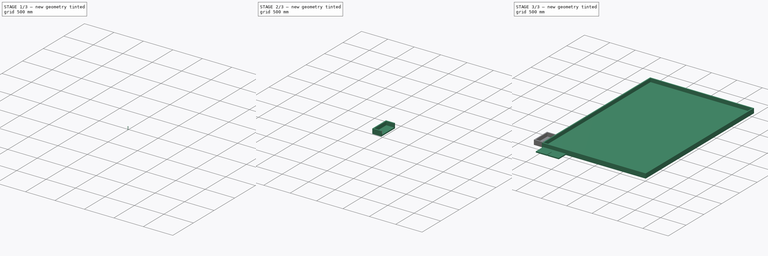
[diagram: build sequence overview — one tinted view per stage of 3, left to right]
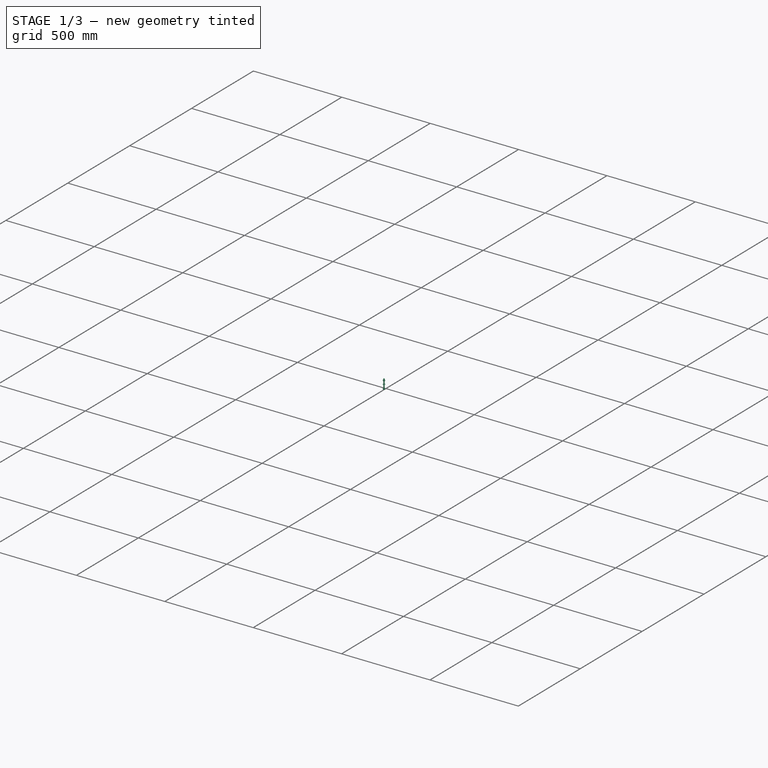
[diagram: stage 1 of 3 — iso view after this stage's code; geometry added in this stage tinted green]
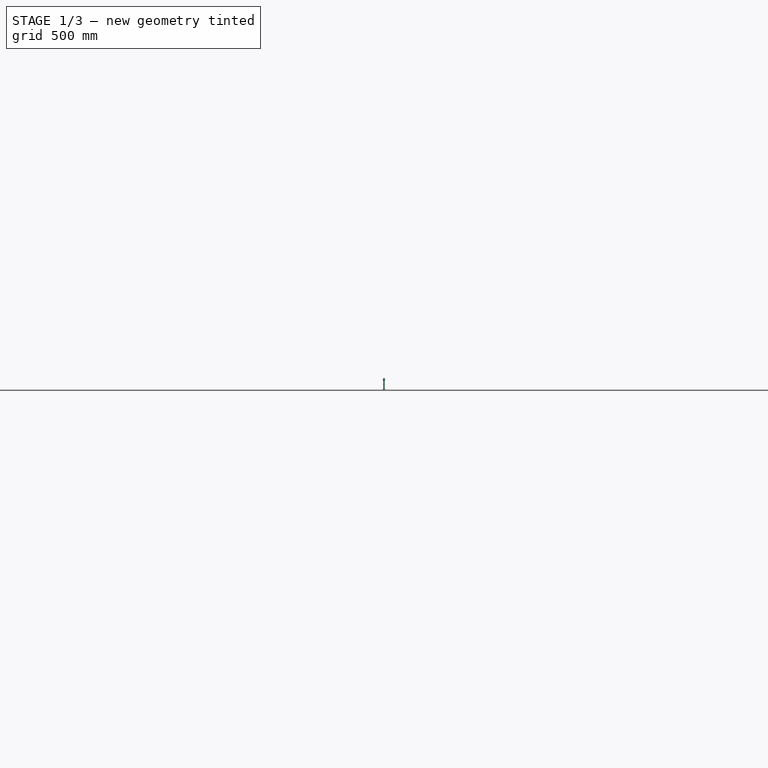
[diagram: stage 1 of 3 — front view after this stage's code; geometry added in this stage tinted green]
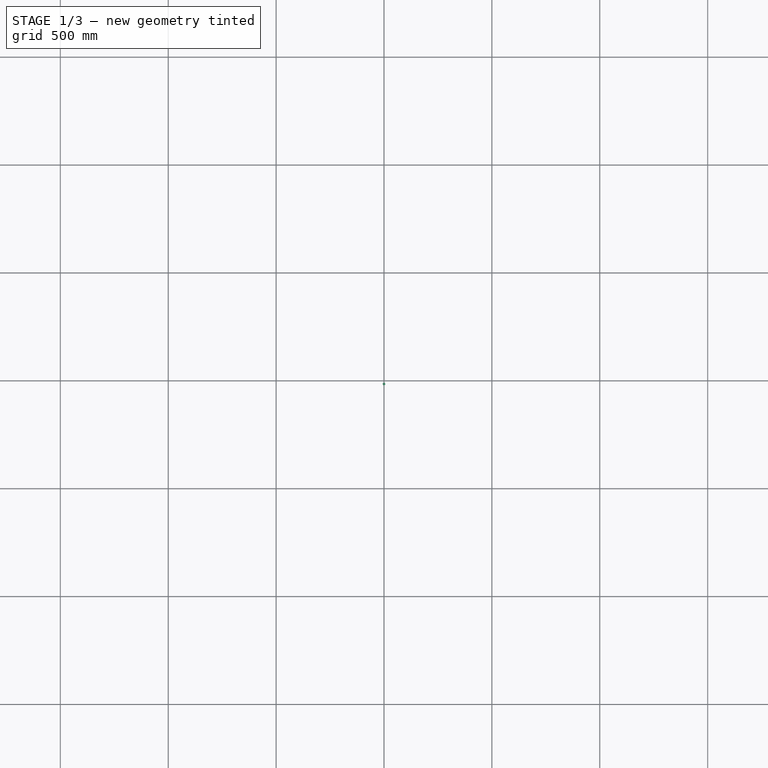
[diagram: stage 1 of 3 — top view after this stage's code; geometry added in this stage tinted green]
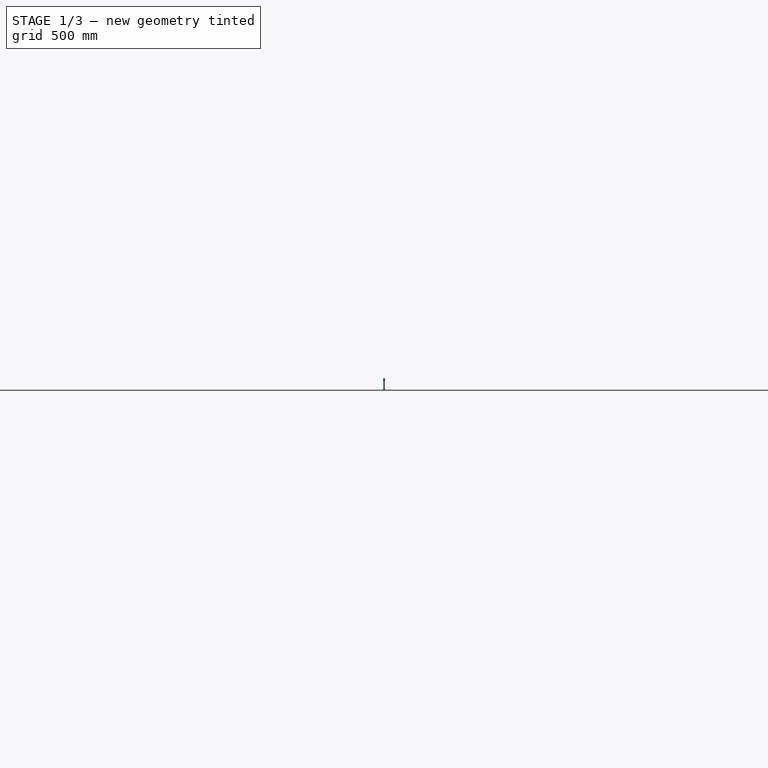
[diagram: stage 1 of 3 — right view after this stage's code; geometry added in this stage tinted green]
FCSTD DOCUMENT  (FreeCAD 2024.113R14555 (Git shallow))
Label: table_2024
License: Creative Commons Attribution-NoDerivatives
LicenseURL: http://creativecommons.org/licenses/by-nd/4.0/
objects: App::Link×27, App::Part×6, Sketcher::SketchObject×5, PartDesign::Pad×4, PartDesign::Body×3, Part::Feature×3, Part::FeaturePython×3, Image::ImagePlane×2, App::DocumentObjectGroup×2, App::SavedView×2, PartDesign::Pocket×1
note: 34 computed .brp shape members not serialized (recipe doc carries the construction recipe); baked Part::Feature solids carry a one-line shape summary decoded from their .brp
EXTERNAL_REF file=robots_2024.FCStd obj=Part

FEATURE [PartDesign::Body] Body011  label="Jardiniere"
  AutoGroupSolids = false
  ClaimAllChildren = false
  ExportMode = 0
  FixShape = 1
  Group = -> [Sketch003,Pad003,Sketch004,Pocket]
  InvalidShape = false
  Origin = -> Origin016
  Placement = pos=(0,578,0) rot=(0,0,1;0rad)
  SingleSolid = true
  Tip = -> Pocket
  TreeRank = 131
  ValidateShape = false
  _ExportChildren = -> [Pad003,Pocket]
  _GroupVersion = 1
FEATURE [App::Link] Link002  label="Link002(Jardiniere)"
  AutoLinkLabel = true
  AutoPlacement = true
  LinkPlacement = pos=(0,2050,0) rot=(0,0,1;0rad)
  LinkedObject = -> Body011
  Placement = pos=(0,2050,0) rot=(0,0,1;0rad)
  SyncGroupVisibility = false
  TreeRank = 136
  _LinkVersion = 1
FEATURE [App::Link] Link003  label="Link003(Jardiniere)"
  AutoLinkLabel = true
  AutoPlacement = true
  LinkPlacement = pos=(797,3.67761e-05,0) rot=(0,0,1;1.5708rad)
  LinkedObject = -> Body011
  Placement = pos=(797,3.67761e-05,0) rot=(0,0,1;1.5708rad)
  SyncGroupVisibility = false
  TreeRank = 137
  _LinkVersion = 1
FEATURE [App::Link] Link004  label="Link004(*Jardiniere)"
  AutoLinkLabel = true
  AutoPlacement = true
  LinkPlacement = pos=(1572,0.000129163,0) rot=(0,0,1;1.5708rad)
  LinkedObject = -> Link003
  Placement = pos=(1572,0.000129163,0) rot=(0,0,1;1.5708rad)
  SyncGroupVisibility = false
  TreeRank = 138
  _LinkVersion = 1
FEATURE [App::Link] Link005  label="Link005(*Jardiniere)"
  AutoLinkLabel = true
  AutoPlacement = true
  LinkPlacement = pos=(428,3000,0) rot=(0,0,-1;1.5708rad)
  LinkedObject = -> Link003
  Placement = pos=(428,3000,0) rot=(0,0,-1;1.5708rad)
  SyncGroupVisibility = false
  TreeRank = 139
  _LinkVersion = 1
FEATURE [App::Link] Link006  label="Link006(*Jardiniere)"
  AutoLinkLabel = true
  AutoPlacement = true
  LinkPlacement = pos=(1203,3000,0) rot=(0,0,-1;1.5708rad)
  LinkedObject = -> Link004
  Placement = pos=(1203,3000,0) rot=(0,0,-1;1.5708rad)
  SyncGroupVisibility = false
  TreeRank = 140
  _LinkVersion = 1
FEATURE [App::Part] Part  label="Jardinieres"
  ClaimAllChildren = false
  ExportMode = 1
  Group = -> [Body011,Link002,Link003,Link004,Link005,Link006]
  Origin = -> Origin017
  TreeRank = 143
  _ExportChildren = -> [Body011,Link002,Link003,Link004,Link005,Link006]
  _GroupVersion = 1
FEATURE [Part::Feature] Solid  label="Panneau"
  FixShape = 1
  InvalidShape = false
  Placement = pos=(0,-15,100.6) rot=(0,0,1;2.26893rad)
  TreeRank = 144
  ValidateShape = false
  shape: bbox 140.9 x 140.9 x 34 mm, 21 faces (baked)
FEATURE [Part::Feature] Solid001  label="Support Panneau"
  FixShape = 1
  InvalidShape = false
  Placement = pos=(0,-15,45) rot=(0,0,1;0rad)
  TreeRank = 145
  ValidateShape = false
  shape: bbox 60 x 22.5 x 50 mm, 29 faces (baked)
FEATURE [Part::FeaturePython] Washer  label="M6-Rondelle"  # Fasteners workbench fastener (typed FeaturePython)
  FixShape = 1
  InvalidShape = false
  Placement = pos=(0,-15,70) rot=(0,0,1;0rad)
  TreeRank = 161
  ValidateShape = false
  baseObject = -> Solid001 [Edge23]
  diameter = 7
  invert = false
  matchOuter = false
  offset = 0
  type = 5
FEATURE [Part::FeaturePython] Nut  label="M6-Écrou"  # Fasteners workbench fastener (typed FeaturePython)
  FixShape = 1
  InvalidShape = false
  Placement = pos=(0,-15,88.1) rot=(0,0,1;0rad)
  TreeRank = 163
  ValidateShape = false
  baseObject = -> Solid [Edge33]
  diameter = 4
  invert = true
  leftHanded = false
  matchOuter = false
  offset = 0
  thread = false
  type = 21
FEATURE [Part::FeaturePython] Screw  label="M6x50-Vis"  # Fasteners workbench fastener (typed FeaturePython)
  FixShape = 1
  InvalidShape = false
  Placement = pos=(0,-15,50) rot=(-1,0,0;3.14159rad)
  TreeRank = 164
  ValidateShape = false
  baseObject = -> Solid001 [Edge63]
  diameter = 7
  invert = true
  leftHanded = false
  length = 11
  lengthCustom = 50
  matchOuter = false
  offset = 0
  thread = false
  type = 48
FEATURE [App::Part] Part004  label="Panneau Solaire"
  ClaimAllChildren = false
  ExportMode = 1
  Group = -> [Solid,Solid001,Washer,Nut,Screw]
  Origin = -> Origin018
  Placement = pos=(2022,275,0) rot=(0,0,1;1.5708rad)
  TreeRank = 148
  _ExportChildren = -> [Solid,Solid001,Washer,Nut,Screw]
  _GroupVersion = 1
FEATURE [App::Link] Link007  label="Link007(Panneau Solaire)"
  AutoLinkLabel = true
  AutoPlacement = true
  LinkPlacement = pos=(2022,500,0) rot=(0,0,1;1.5708rad)
  LinkedObject = -> Part004
  Placement = pos=(2022,500,0) rot=(0,0,1;1.5708rad)
  SyncGroupVisibility = false
  TreeRank = 165
  _LinkVersion = 1
FEATURE [App::Link] Link008  label="Link008(*Panneau Solaire)"
  AutoLinkLabel = true
  AutoPlacement = true
  LinkPlacement = pos=(2022,725,0) rot=(0,0,1;1.5708rad)
  LinkedObject = -> Link007
  Placement = pos=(2022,725,0) rot=(0,0,1;1.5708rad)
  SyncGroupVisibility = false
  TreeRank = 166
  _LinkVersion = 1
FEATURE [App::Link] Link009  label="Link009(*Panneau Solaire)"
  AutoLinkLabel = true
  AutoPlacement = true
  LinkPlacement = pos=(2022,1275,0) rot=(0,0,1;1.5708rad)
  LinkedObject = -> Link008
  Placement = pos=(2022,1275,0) rot=(0,0,1;1.5708rad)
  SyncGroupVisibility = false
  TreeRank = 167
  _LinkVersion = 1
FEATURE [App::Link] Link010  label="Link010(*Panneau Solaire)"
  AutoLinkLabel = true
  AutoPlacement = true
  LinkPlacement = pos=(2022,1500,0) rot=(0,0,1;1.5708rad)
  LinkedObject = -> Link009
  Placement = pos=(2022,1500,0) rot=(0,0,1;1.5708rad)
  SyncGroupVisibility = false
  TreeRank = 168
  _LinkVersion = 1
FEATURE [App::Link] Link011  label="Link011(*Panneau Solaire)"
  AutoLinkLabel = true
  AutoPlacement = true
  LinkPlacement = pos=(2022,1725,0) rot=(0,0,1;1.5708rad)
  LinkedObject = -> Link010
  Placement = pos=(2022,1725,0) rot=(0,0,1;1.5708rad)
  SyncGroupVisibility = false
  TreeRank = 169
  _LinkVersion = 1
FEATURE [App::Link] Link012  label="Link012(*Panneau Solaire)"
  AutoLinkLabel = true
  AutoPlacement = true
  LinkPlacement = pos=(2022,2275,0) rot=(0,0,1;1.5708rad)
  LinkedObject = -> Link011
  Placement = pos=(2022,2275,0) rot=(0,0,1;1.5708rad)
  SyncGroupVisibility = false
  TreeRank = 170
  _LinkVersion = 1
FEATURE [App::Link] Link013  label="Link013(*Panneau Solaire)"
  AutoLinkLabel = true
  AutoPlacement = true
  LinkPlacement = pos=(2022,2500,0) rot=(0,0,1;1.5708rad)
  LinkedObject = -> Link012
  Placement = pos=(2022,2500,0) rot=(0,0,1;1.5708rad)
  SyncGroupVisibility = false
  TreeRank = 171
  _LinkVersion = 1
FEATURE [App::Link] Link014  label="Link014(*Panneau Solaire)"
  AutoLinkLabel = true
  AutoPlacement = true
  LinkPlacement = pos=(2022,2725,0) rot=(0,0,1;1.5708rad)
  LinkedObject = -> Link013
  Placement = pos=(2022,2725,0) rot=(0,0,1;1.5708rad)
  SyncGroupVisibility = false
  TreeRank = 172
  _LinkVersion = 1
FEATURE [App::Part] Part005  label="Panneaux Solaire"
  ClaimAllChildren = false
  ExportMode = 1
  Group = -> [Part004,Link007,Link008,Link009,Link010,Link011,Link012,Link013,Link014]
  Origin = -> Origin019
  TreeRank = 175
  _ExportChildren = -> [Part004,Link007,Link008,Link009,Link010,Link011,Link012,Link013,Link014]
  _GroupVersion = 1
FEATURE [Part::Feature] Solid002  label="plante"
  FixShape = 1
  InvalidShape = false
  Placement = pos=(700,920,0) rot=(0,0,1;0rad)
  TreeRank = 176
  ValidateShape = false
  shape: bbox 76.08 x 76.08 x 105.5 mm, 363 faces (baked)
FEATURE [App::Link] Link015  label="Link015(plante)"
  AutoLinkLabel = true
  AutoPlacement = true
  LinkPlacement = pos=(630,945,0) rot=(0,0,-1;0.349066rad)
  LinkedObject = -> Solid002
  Placement = pos=(630,945,0) rot=(0,0,-1;0.349066rad)
  SyncGroupVisibility = false
  TreeRank = 177
  _LinkVersion = 1
FEATURE [App::Link] Link016  label="Link016(plante)"
  AutoLinkLabel = true
  AutoPlacement = true
  LinkPlacement = pos=(775,950,0) rot=(0,0,1;0.174533rad)
  LinkedObject = -> Solid002
  Placement = pos=(775,950,0) rot=(0,0,1;0.174533rad)
  SyncGroupVisibility = false
  TreeRank = 178
  _LinkVersion = 1
FEATURE [App::Link] Link017  label="Link017(plante)"
  AutoLinkLabel = true
  AutoPlacement = true
  LinkPlacement = pos=(700,1070,0) rot=(0,0,-1;0.174533rad)
  LinkedObject = -> Solid002
  Placement = pos=(700,1070,0) rot=(0,0,-1;0.174533rad)
  SyncGroupVisibility = false
  TreeRank = 179
  _LinkVersion = 1
FEATURE [App::Link] Link018  label="Link018(*plante)"
  AutoLinkLabel = true
  AutoPlacement = true
  LinkPlacement = pos=(773.86,1056.98,0) rot=(0,0,-1;0.523599rad)
  LinkedObject = -> Link017
  Placement = pos=(773.86,1056.98,0) rot=(0,0,-1;0.523599rad)
  SyncGroupVisibility = false
  TreeRank = 180
  _LinkVersion = 1
FEATURE [App::Link] Link019  label="Link019(*plante)"
  AutoLinkLabel = true
  AutoPlacement = true
  LinkPlacement = pos=(640,1055,0) rot=(0,0,1;0.174533rad)
  LinkedObject = -> Link017
  Placement = pos=(640,1055,0) rot=(0,0,1;0.174533rad)
  SyncGroupVisibility = false
  TreeRank = 181
  _LinkVersion = 1
FEATURE [App::Part] Part006  label="Ensemble Plantes"
  ClaimAllChildren = false
  ExportMode = 1
  Group = -> [Solid002,Link015,Link016,Link017,Link018,Link019]
  Origin = -> Origin020
  TreeRank = 184
  _ExportChildren = -> [Solid002,Link015,Link016,Link017,Link018,Link019]
  _GroupVersion = 1
FEATURE [App::Link] Link020  label="Link020(Ensemble Plantes)"
  AutoLinkLabel = true
  AutoPlacement = true
  LinkPlacement = pos=(600,-7.15256e-05,0) rot=(0,0,1;0rad)
  LinkedObject = -> Part006
  Placement = pos=(600,-7.15256e-05,0) rot=(0,0,1;0rad)
  SyncGroupVisibility = false
  TreeRank = 185
  _LinkVersion = 1
FEATURE [App::Link] Link021  label="Link021(Ensemble Plantes)"
  AutoLinkLabel = true
  AutoPlacement = true
  LinkPlacement = pos=(-3.8147e-06,1005,0) rot=(0,0,1;0rad)
  LinkedObject = -> Part006
  Placement = pos=(-3.8147e-06,1005,0) rot=(0,0,1;0rad)
  SyncGroupVisibility = false
  TreeRank = 186
  _LinkVersion = 1
FEATURE [App::Link] Link022  label="Link022(Ensemble Plantes)"
  AutoLinkLabel = true
  AutoPlacement = true
  LinkPlacement = pos=(600,1000,0) rot=(0,0,1;0rad)
  LinkedObject = -> Part006
  Placement = pos=(600,1000,0) rot=(0,0,1;0rad)
  SyncGroupVisibility = false
  TreeRank = 187
  _LinkVersion = 1
FEATURE [App::Link] Link023  label="Link023(Ensemble Plantes)"
  AutoLinkLabel = true
  AutoPlacement = true
  LinkPlacement = pos=(-364.032,639.662,2.645e-12) rot=(0,0,-1;0.174533rad)
  LinkedObject = -> Part006
  Placement = pos=(-364.032,639.662,2.645e-12) rot=(0,0,-1;0.174533rad)
  SyncGroupVisibility = false
  TreeRank = 188
  _LinkVersion = 1
FEATURE [App::Link] Link024  label="Link024(*Ensemble Plantes)"
  AutoLinkLabel = true
  AutoPlacement = true
  LinkPlacement = pos=(800,500,0) rot=(0,0,1;0rad)
  LinkedObject = -> Link022
  Placement = pos=(800,500,0) rot=(0,0,1;0rad)
  SyncGroupVisibility = false
  TreeRank = 189
  _LinkVersion = 1
FEATURE [App::DocumentObjectGroup] Group001  label="Plantes"
  ClaimAllChildren = true
  ExportMode = 1
  Group = -> [Part006,Link020,Link021,Link022,Link023,Link024]
  TreeRank = 190
  _GroupVersion = 1
FEATURE [App::Part] Part001  label="Table 2024"
  ClaimAllChildren = false
  ExportMode = 1
  Group = -> [ImagePlane,ImagePlane001,Part,Part005,Group001,Part006,Link020,Link024,Link022,Link023,Link021]
  Origin = -> Origin003
  TreeRank = 0
  _ExportChildren = -> [ImagePlane,ImagePlane001,Part,Part005,Group001]
  _GroupVersion = 1
FEATURE [App::Link] Link025  label="Link025(plante)"
  AutoLinkLabel = true
  AutoPlacement = true
  LinkPlacement = pos=(1406,392,0) rot=(0,0,1;0rad)
  LinkedObject = -> Solid002
  Placement = pos=(1406,392,0) rot=(0,0,1;0rad)
  SyncGroupVisibility = false
  TreeRank = 191
  _LinkVersion = 1
FEATURE [App::Link] Link026  label="Link026(*plante)"
  AutoLinkLabel = true
  AutoPlacement = true
  LinkPlacement = pos=(1474,395,0) rot=(0,0,1;0rad)
  LinkedObject = -> Link025
  Placement = pos=(1474,395,0) rot=(0,0,1;0rad)
  SyncGroupVisibility = false
  TreeRank = 192
  _LinkVersion = 1
FEATURE [App::SavedView] SavedView
  BackLight = true
  BackLightIntensity = 1
  ClipConcave = false
  ClipEnable = false
  ClipEnableX = false
  ClipEnableY = true
  ClipEnableZ = false
  ClipFill = true
  ClipGroup = false
  ClipHatch = true
  ClipHatchScale = 0.5
  ClipHatchTexture = :icons/section-hatch.png
  ClipPlaneSize = 40
  ClipPosition = (0,0,0)
  ClipPositionX = (0,0,0)
  ClipPositionY = (0,-50,-1.14441e-05)
  ClipPositionZ = (0,0,0)
  ClipShowPlane = false
  SaveCamera = true
  SaveClippings = true
  SaveDrawStyleSettings = true
  SaveShowOnTop = true
  SaveVisibilities = true
  TreeRank = 193
FEATURE [App::SavedView] SavedView001
  BackLight = true
  BackLightIntensity = 1
  ClipConcave = false
  ClipEnable = false
  ClipEnableX = false
  ClipEnableY = true
  ClipEnableZ = false
  ClipFill = true
  ClipGroup = false
  ClipHatch = true
  ClipHatchScale = 0.5
  ClipHatchTexture = :icons/section-hatch.png
  ClipPlaneSize = 40
  ClipPosition = (0,0,0)
  ClipPositionX = (0,0,0)
  ClipPositionY = (0,-80,-3.05176e-05)
  ClipPositionZ = (0,0,0)
  ClipShowPlane = false
  SaveCamera = true
  SaveClippings = true
  SaveDrawStyleSettings = true
  SaveShowOnTop = true
  SaveVisibilities = true
  TreeRank = 194
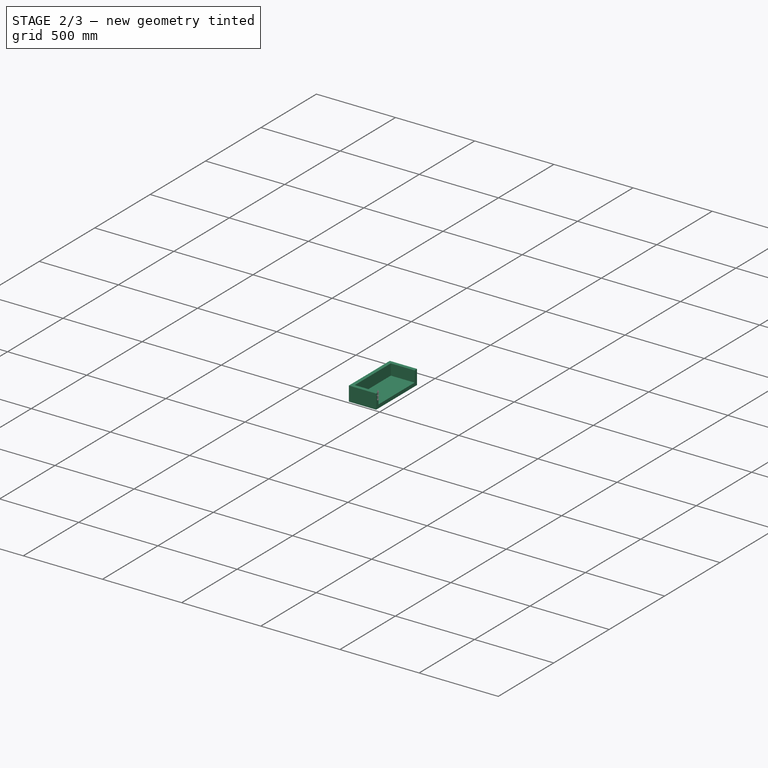
[diagram: stage 2 of 3 — iso view after this stage's code; geometry added in this stage tinted green]
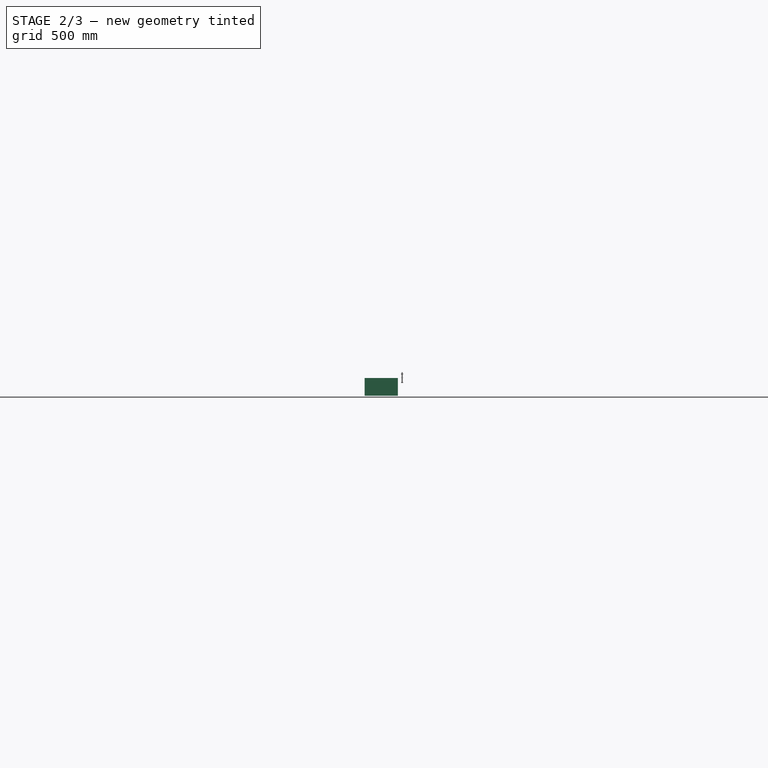
[diagram: stage 2 of 3 — front view after this stage's code; geometry added in this stage tinted green]
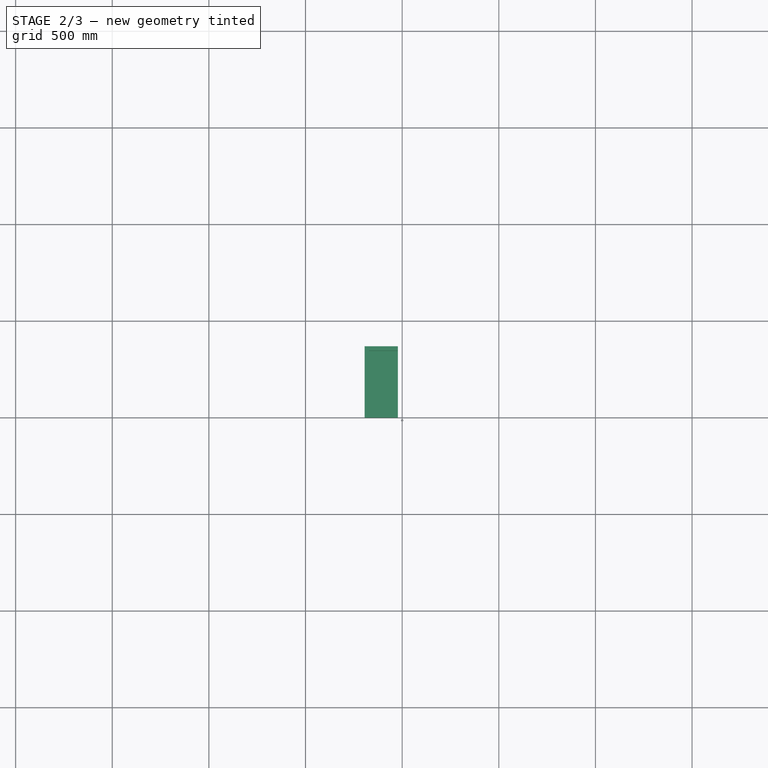
[diagram: stage 2 of 3 — top view after this stage's code; geometry added in this stage tinted green]
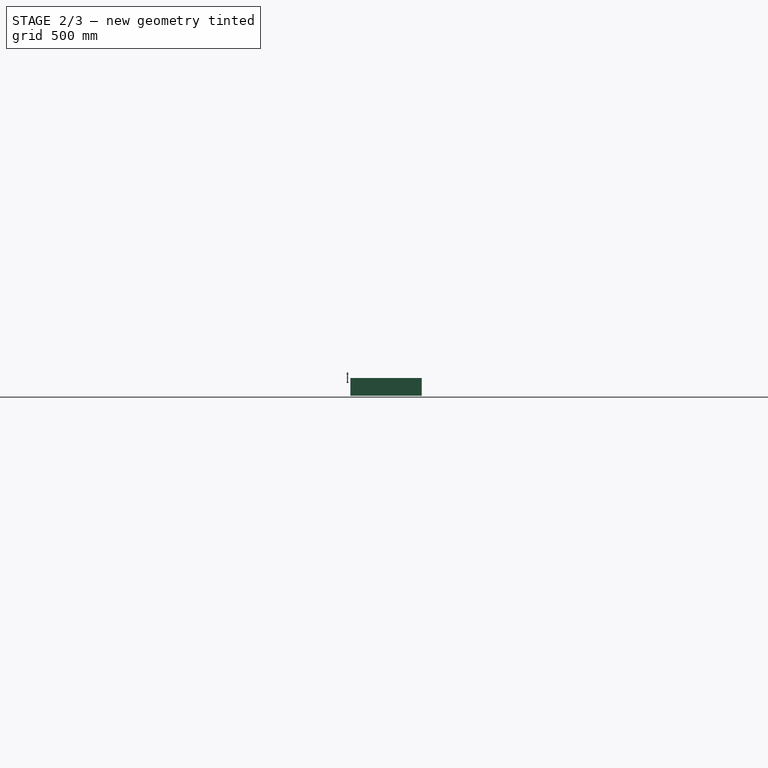
[diagram: stage 2 of 3 — right view after this stage's code; geometry added in this stage tinted green]
FEATURE [PartDesign::Body] Body010  label="ZoneCalculBleu"
  AutoGroupSolids = false
  ClaimAllChildren = false
  ExportMode = 0
  Group = -> [Sketch002,Pad002]
  InvalidShape = false
  Origin = -> Origin015
  Placement = pos=(3.331e-13,1500,70) rot=(0,0,-1;1.5708rad)
  SingleSolid = true
  Tip = -> Pad002
  TreeRank = 115
  ValidateShape = true
  _ExportChildren = -> [Pad002]
  _GroupVersion = 1
FEATURE [App::Link] Link  label="Mary"
  AutoLinkLabel = true
  AutoPlacement = true
  LinkPlacement = pos=(1842,151,14) rot=(0,0,-1;1.5708rad)
  LinkedObject = -> <external robots_2024.FCStd>#Part
  Placement = pos=(1842,151,14) rot=(0,0,-1;1.5708rad)
  SyncGroupVisibility = false
  TreeRank = 119
  _LinkVersion = 1
FEATURE [App::DocumentObjectGroup] Group  label="Robots"
  ClaimAllChildren = true
  ExportMode = 1
  Group = -> [Link]
  TreeRank = 0
  _GroupVersion = 1
FEATURE [Image::ImagePlane] ImagePlane001  label="Quadrillage"
  Placement = pos=(1000,1500,0.2) rot=(0,0,1;1.5708rad)
  TreeRank = 120
  XSize = 3000
  YSize = 2000
FEATURE [App::Link] Link001  label="ZoneCalculJaune"
  AutoLinkLabel = true
  AutoPlacement = true
  LinkPlacement = pos=(0.000107288,1950,70) rot=(0,0,-1;1.5708rad)
  LinkedObject = -> Body010
  Placement = pos=(0.000107288,1950,70) rot=(0,0,-1;1.5708rad)
  SyncGroupVisibility = false
  TreeRank = 121
  _LinkVersion = 1
FEATURE [App::Part] Part003  label="Table"
  ClaimAllChildren = false
  ExportMode = 1
  Group = -> [Body,Body010,Link001]
  Origin = -> Origin014
  TreeRank = 40
  _ExportChildren = -> [Body,Body010,Link001]
  _GroupVersion = 1
FEATURE [Sketcher::SketchObject] Sketch003
  ArcFitTolerance = 1e-06
  AttachmentSupport = -> [XZ_Plane012]
  ExternalBSplineMaxDegree = 5
  ExternalBSplineTolerance = 0.0001
  FixShape = 1
  FullyConstrained = true
  InternalTolerance = 1e-06
  InvalidShape = false
  MakeInternals = false
  MapMode = 5
  Placement = pos=(0,0,0) rot=(1,0,0;1.5708rad)
  Support = -> [XZ_Plane012]
  TreeRank = 132
  ValidateShape = false
  sketch-geometry (4):
    g0: LineSegment StartX=-194 StartY=70 StartZ=0 EndX=-22 EndY=70 EndZ=0
    g1: LineSegment StartX=-22 StartY=70 StartZ=0 EndX=-22 EndY=-22 EndZ=0
    g2: LineSegment StartX=-22 StartY=-22 StartZ=0 EndX=-194 EndY=-22 EndZ=0
    g3: LineSegment StartX=-194 StartY=-22 StartZ=0 EndX=-194 EndY=70 EndZ=0
  constraints (12):
    c: Coincident(g0,g1)
    c: Coincident(g1,g2)
    c: Coincident(g2,g3)
    c: Coincident(g3,g0)
    c: Horizontal(g0)
    c: Horizontal(g2)
    c: Vertical(g1)
    c: Vertical(g3)
    c: DistanceY(g1,g-1) = 22
    c: DistanceX(g1,g-1) = 22
    c: DistanceY(g0) = 70
    c: DistanceX(g0,g0) = 172
FEATURE [PartDesign::Pad] Pad003
  AddSubType = 0
  AlongSketchNormal = false
  AutoTaperInnerAngle = true
  CheckUpToFaceLimits = true
  ClaimChildren = false
  Direction = (0,-1,2e-16)
  Fit = 0
  FitJoin = 0
  FixShape = 1
  InnerFit = 0
  InnerFitJoin = 0
  InvalidShape = false
  Length = 369
  Length2 = 10
  Linearize = true
  NewSolid = false
  Profile = -> Sketch003
  ReferenceAxis = -> Sketch003 [N_Axis]
  Refine = true
  Reversed = true
  Suppress = false
  TaperInnerAngle = 0
  TaperInnerAngleRev = 0
  TreeRank = 133
  Type = 0
  ValidateShape = false
  _ProfileBasedVersion = 1
FEATURE [Sketcher::SketchObject] Sketch004
  ArcFitTolerance = 1e-06
  AttachmentSupport = -> [XY_Plane012]
  ExternalBSplineMaxDegree = 5
  ExternalBSplineTolerance = 0.0001
  ExternalGeometry = -> [Pad003]
  FixShape = 1
  FullyConstrained = true
  InternalTolerance = 1e-06
  InvalidShape = false
  MakeInternals = false
  MapMode = 5
  Support = -> [XY_Plane012]
  TreeRank = 134
  ValidateShape = false
  sketch-geometry (4):
    g0: LineSegment StartX=-22 StartY=347 StartZ=0 EndX=-172 EndY=347 EndZ=0
    g1: LineSegment StartX=-172 StartY=347 StartZ=0 EndX=-172 EndY=22 EndZ=0
    g2: LineSegment StartX=-172 StartY=22 StartZ=0 EndX=-22 EndY=22 EndZ=0
    g3: LineSegment StartX=-22 StartY=22 StartZ=0 EndX=-22 EndY=347 EndZ=0
  constraints (12):
    c: Coincident(g0,g1)
    c: Coincident(g1,g2)
    c: Coincident(g2,g3)
    c: Coincident(g3,g0)
    c: Horizontal(g0)
    c: Horizontal(g2)
    c: Vertical(g1)
    c: Vertical(g3)
    c: PointOnObject(g0,g-3)
    c: DistanceY(g0,g-3) = 22
    c: DistanceY(g-3,g2) = 22
    c: DistanceX(g-4,g1) = 22
FEATURE [PartDesign::Pocket] Pocket
  AddSubType = 1
  AlongSketchNormal = false
  AutoTaperInnerAngle = true
  BaseFeature = -> Pad003
  CheckUpToFaceLimits = true
  ClaimChildren = false
  Direction = (0,0,-1)
  Fit = 0
  FitJoin = 0
  FixShape = 1
  InnerFit = 0
  InnerFitJoin = 0
  InvalidShape = false
  Length = 5
  Length2 = 10
  Linearize = true
  NewSolid = false
  Profile = -> Sketch004
  ReferenceAxis = -> Sketch004 [N_Axis]
  Refine = true
  Reversed = true
  Suppress = false
  TaperInnerAngle = 0
  TaperInnerAngleRev = 0
  TreeRank = 135
  Type = 1
  ValidateShape = false
  _ProfileBasedVersion = 1
  _Version = 1
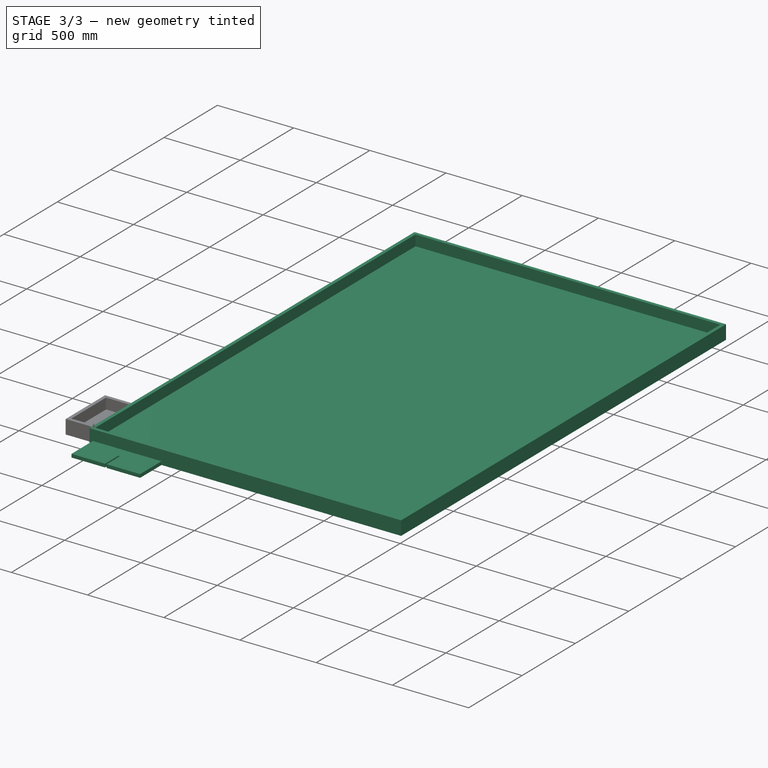
[diagram: stage 3 of 3 — iso view after this stage's code; geometry added in this stage tinted green]
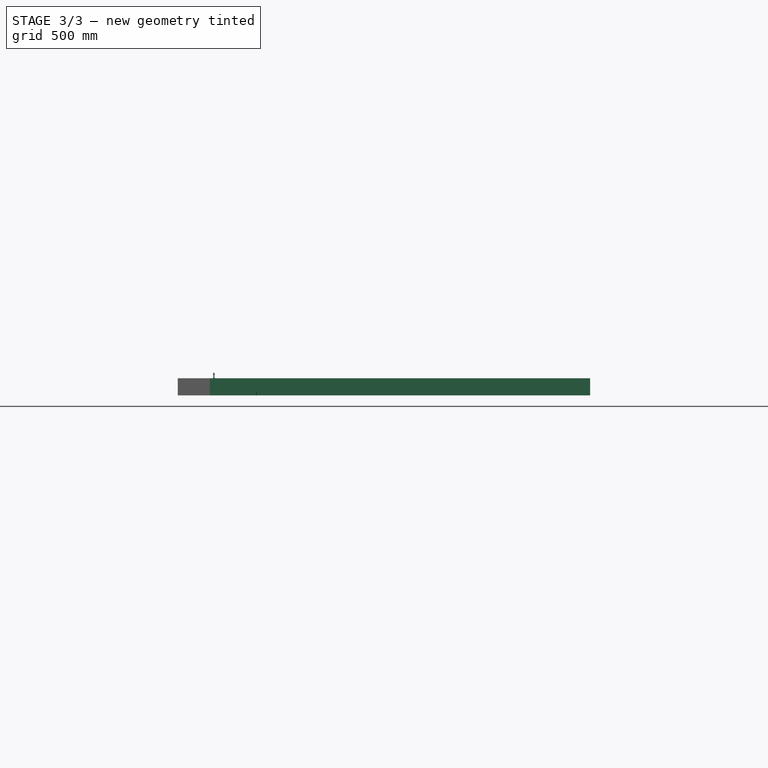
[diagram: stage 3 of 3 — front view after this stage's code; geometry added in this stage tinted green]
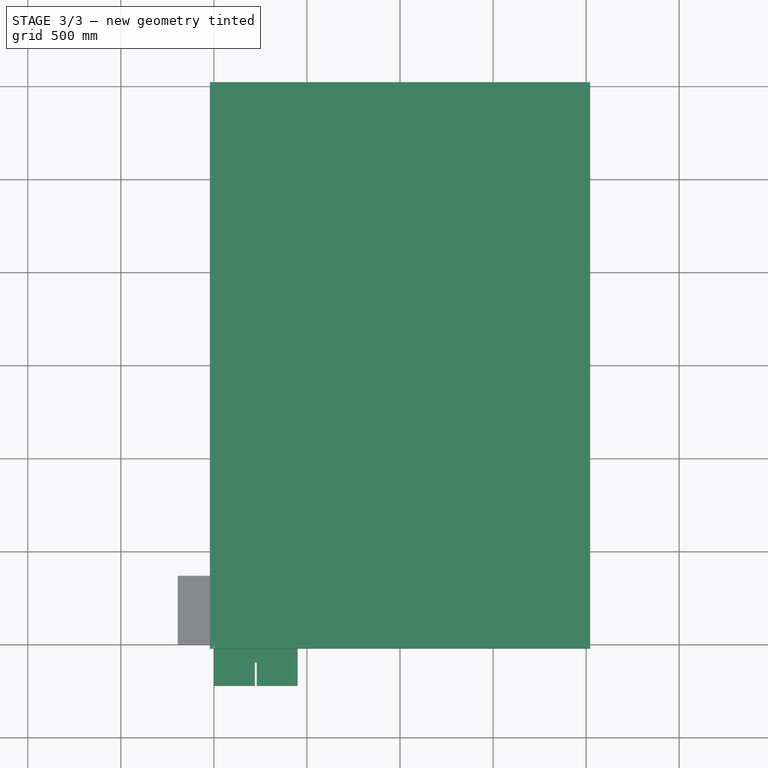
[diagram: stage 3 of 3 — top view after this stage's code; geometry added in this stage tinted green]
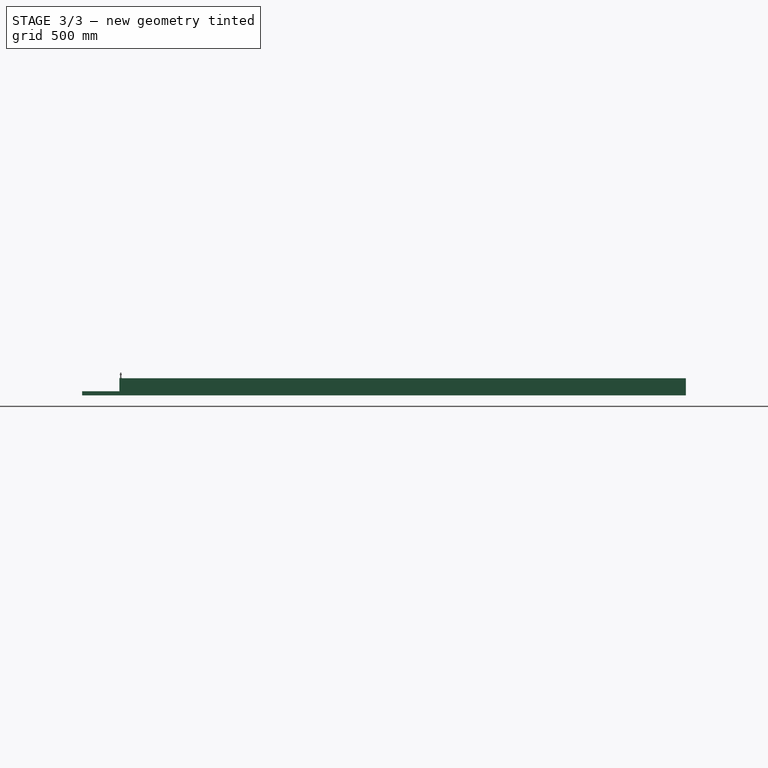
[diagram: stage 3 of 3 — right view after this stage's code; geometry added in this stage tinted green]
FEATURE [Image::ImagePlane] ImagePlane  label="Terrain"
  Placement = pos=(1000,1500,0) rot=(0,0,1;1.5708rad)
  TreeRank = 0
  XSize = 3000.34
  YSize = 2000.17
FEATURE [Sketcher::SketchObject] Sketch
  ArcFitTolerance = 1e-06
  AttachmentSupport = -> [XY_Plane]
  ExternalBSplineMaxDegree = 5
  ExternalBSplineTolerance = 0.0001
  FullyConstrained = true
  InternalTolerance = 1e-06
  InvalidShape = false
  MakeInternals = true
  MapMode = 5
  Support = -> [XY_Plane]
  TreeRank = 102
  ValidateShape = true
  sketch-geometry (4):
    g0: LineSegment StartX=-6.17e-14 StartY=9.4e-15 StartZ=0 EndX=2000 EndY=9.4e-15 EndZ=0
    g1: LineSegment StartX=2000 StartY=9.4e-15 StartZ=0 EndX=2000 EndY=3000 EndZ=0
    g2: LineSegment StartX=2000 StartY=3000 StartZ=0 EndX=0 EndY=3000 EndZ=0
    g3: LineSegment StartX=-6.17e-14 StartY=3000 StartZ=0 EndX=-6.17e-14 EndY=0 EndZ=0
  constraints (11):
    c: Coincident(g0,g1)
    c: Coincident(g1,g2)
    c: Coincident(g2,g3)
    c: Coincident(g3,g0)
    c: Horizontal(g0)
    c: Horizontal(g2)
    c: Vertical(g1)
    c: Vertical(g3)
    c: Coincident(g0,g-1)
    c: DistanceX(g2,g2) = 2000
    c: DistanceY(g1,g1) = 3000
FEATURE [PartDesign::Pad] Pad
  AddSubType = 0
  AlongSketchNormal = false
  AutoTaperInnerAngle = true
  CheckUpToFaceLimits = true
  ClaimChildren = false
  Direction = (0,0,1)
  Fit = 0
  FitJoin = 0
  InnerFit = 0
  InnerFitJoin = 0
  InvalidShape = false
  Length = 22
  Length2 = 100
  Linearize = true
  NewSolid = false
  Profile = -> Sketch
  Refine = true
  Reversed = true
  Suppress = false
  TaperInnerAngle = 0
  TaperInnerAngleRev = 0
  TreeRank = 103
  Type = 0
  ValidateShape = true
  _ProfileBasedVersion = 1
FEATURE [Sketcher::SketchObject] Sketch001
  ArcFitTolerance = 1e-06
  AttachmentSupport = -> [XY_Plane]
  ExternalBSplineMaxDegree = 5
  ExternalBSplineTolerance = 0.0001
  FullyConstrained = true
  InternalTolerance = 1e-06
  InvalidShape = false
  MakeInternals = true
  MapMode = 5
  Support = -> [XY_Plane]
  TreeRank = 104
  ValidateShape = true
  sketch-geometry (8):
    g0: LineSegment StartX=9.49e-14 StartY=1.886e-13 StartZ=0 EndX=2000 EndY=1.886e-13 EndZ=0
    g1: LineSegment StartX=2000 StartY=1.886e-13 StartZ=0 EndX=2000 EndY=3000 EndZ=0
    g2: LineSegment StartX=2000 StartY=3000 StartZ=0 EndX=0 EndY=3000 EndZ=0
    g3: LineSegment StartX=9.49e-14 StartY=3000 StartZ=0 EndX=9.49e-14 EndY=0 EndZ=0
    g4: LineSegment StartX=-22 StartY=-22 StartZ=0 EndX=2022 EndY=-22 EndZ=0
    g5: LineSegment StartX=2022 StartY=-22 StartZ=0 EndX=2022 EndY=3022 EndZ=0
    g6: LineSegment StartX=2022 StartY=3022 StartZ=0 EndX=-22 EndY=3022 EndZ=0
    g7: LineSegment StartX=-22 StartY=3022 StartZ=0 EndX=-22 EndY=-22 EndZ=0
  constraints (23):
    c: Coincident(g0,g1)
    c: Coincident(g1,g2)
    c: Coincident(g2,g3)
    c: Coincident(g3,g0)
    c: Horizontal(g0)
    c: Horizontal(g2)
    c: Vertical(g1)
    c: Vertical(g3)
    c: Coincident(g0,g-1)
    c: Coincident(g4,g5)
    c: Coincident(g5,g6)
    c: Coincident(g6,g7)
    c: Coincident(g7,g4)
    c: Horizontal(g4)
    c: Horizontal(g6)
    c: Vertical(g5)
    c: Vertical(g7)
    c: DistanceX(g4,g0) = 22
    c: DistanceY(g4,g0) = 22
    c: DistanceX(g2,g2) = 2000
    c: DistanceY(g1,g1) = 3000
    c: DistanceX(g1,g5) = 22
    c: DistanceY(g1,g5) = 22
FEATURE [PartDesign::Pad] Pad001
  AddSubType = 0
  AlongSketchNormal = false
  AutoTaperInnerAngle = true
  BaseFeature = -> Pad
  CheckUpToFaceLimits = true
  ClaimChildren = false
  Direction = (0,0,1)
  Fit = 0
  FitJoin = 0
  InnerFit = 0
  InnerFitJoin = 0
  InvalidShape = false
  Length = 70
  Length2 = 22
  Linearize = true
  NewSolid = false
  Profile = -> Sketch001
  Refine = true
  Suppress = false
  TaperInnerAngle = 0
  TaperInnerAngleRev = 0
  TreeRank = 105
  Type = 4
  ValidateShape = true
  _ProfileBasedVersion = 1
FEATURE [PartDesign::Body] Body  label="BaseTable"
  AutoGroupSolids = false
  ClaimAllChildren = false
  ExportMode = 0
  Group = -> [Sketch,Pad,Sketch001,Pad001]
  InvalidShape = false
  Origin = -> Origin
  SingleSolid = true
  Tip = -> Pad001
  TreeRank = 101
  ValidateShape = true
  _ExportChildren = -> [Pad,Pad001]
  _GroupVersion = 1
FEATURE [Sketcher::SketchObject] Sketch002
  ArcFitTolerance = 1e-06
  AttachmentSupport = -> [XY_Plane011]
  ExternalBSplineMaxDegree = 5
  ExternalBSplineTolerance = 0.0001
  FullyConstrained = true
  InternalTolerance = 1e-06
  InvalidShape = false
  MakeInternals = true
  MapMode = 5
  Support = -> [XY_Plane011]
  TreeRank = 116
  ValidateShape = true
  sketch-geometry (9):
    g0: LineSegment StartX=-7.371e-13 StartY=-22 StartZ=0 EndX=450 EndY=-22 EndZ=0
    g1: LineSegment StartX=450 StartY=-22 StartZ=0 EndX=450 EndY=-222 EndZ=0
    g2: LineSegment [constr] StartX=450 StartY=-222 StartZ=0 EndX=-7.39e-13 EndY=-222 EndZ=0
    g3: LineSegment StartX=-7.371e-13 StartY=-222 StartZ=0 EndX=-7.371e-13 EndY=-22 EndZ=0
    g4: LineSegment StartX=220 StartY=-222 StartZ=0 EndX=220 EndY=-100 EndZ=0
    g5: LineSegment StartX=230 StartY=-222 StartZ=0 EndX=230 EndY=-100 EndZ=0
    g6: ArcOfCircle CenterX=225 CenterY=-100 CenterZ=0 NormalX=0 NormalY=0 NormalZ=1 AngleXU=0 Radius=5 StartAngle=-8.5425e-12 EndAngle=3.14159
    g7: LineSegment StartX=220 StartY=-222 StartZ=0 EndX=-7.39e-13 EndY=-222 EndZ=0
    g8: LineSegment StartX=230 StartY=-222 StartZ=0 EndX=450 EndY=-222 EndZ=0
  constraints (25):
    c: Coincident(g0,g1)
    c: Coincident(g1,g2)
    c: Coincident(g2,g3)
    c: Coincident(g3,g0)
    c: Horizontal(g0)
    c: Horizontal(g2)
    c: Vertical(g1)
    c: Vertical(g3)
    c: PointOnObject(g0,g-2)
    c: DistanceY(g1,g1) = 200
    c: DistanceY(g0,g-1) = 22
    c: DistanceX(g2,g2) = 450
    c: PointOnObject(g4,g2)
    c: Vertical(g4)
    c: PointOnObject(g5,g2)
    c: Vertical(g5)
    c: Tangent(g6,g5) = -1.5708
    c: Tangent(g6,g4) = 1.5708
    c: Coincident(g7,g4)
    c: Coincident(g7,g3)
    c: Coincident(g8,g5)
    c: Coincident(g8,g1)
    c: Equal(g8,g7)
    c: DistanceX(g4,g5) = 10
    c: DistanceY(g1,g6) = 122
FEATURE [PartDesign::Pad] Pad002
  AddSubType = 0
  AlongSketchNormal = false
  AutoTaperInnerAngle = true
  CheckUpToFaceLimits = true
  ClaimChildren = false
  Direction = (0,0,1)
  Fit = 0
  FitJoin = 0
  InnerFit = 0
  InnerFitJoin = 0
  InvalidShape = false
  Length = 22
  Length2 = 100
  Linearize = true
  NewSolid = false
  Profile = -> Sketch002
  Refine = true
  Reversed = true
  Suppress = false
  TaperInnerAngle = 0
  TaperInnerAngleRev = 0
  TreeRank = 117
  Type = 0
  ValidateShape = true
  _ProfileBasedVersion = 1
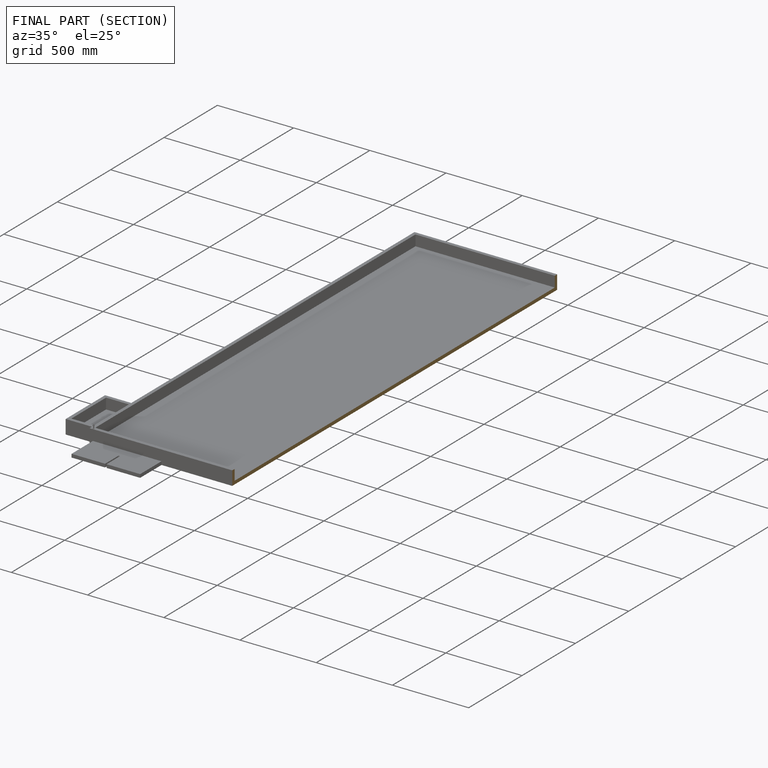
[diagram: finished part — half-section view (interior)]
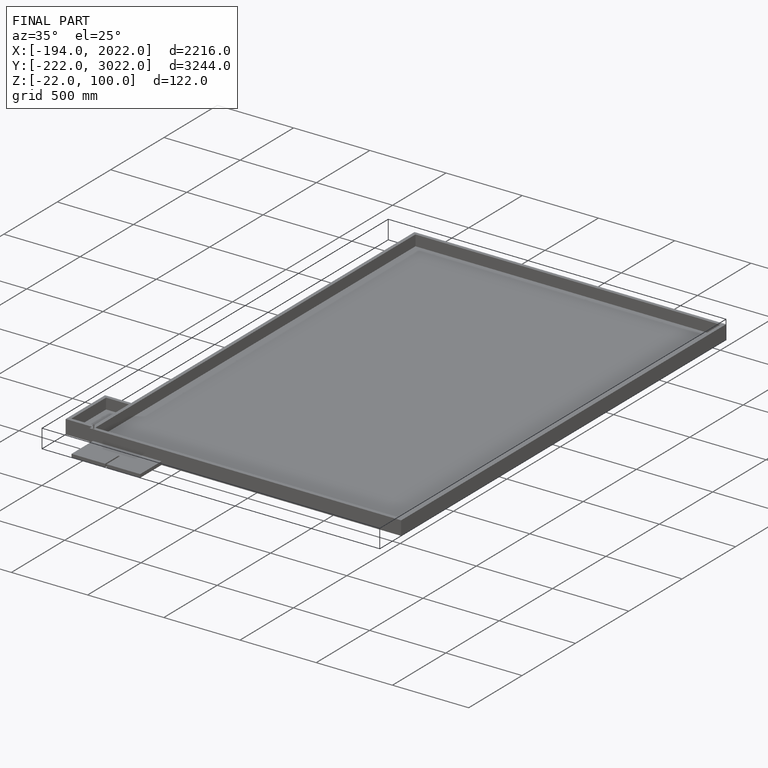
[diagram: finished part — iso view with bounding-box wireframe]
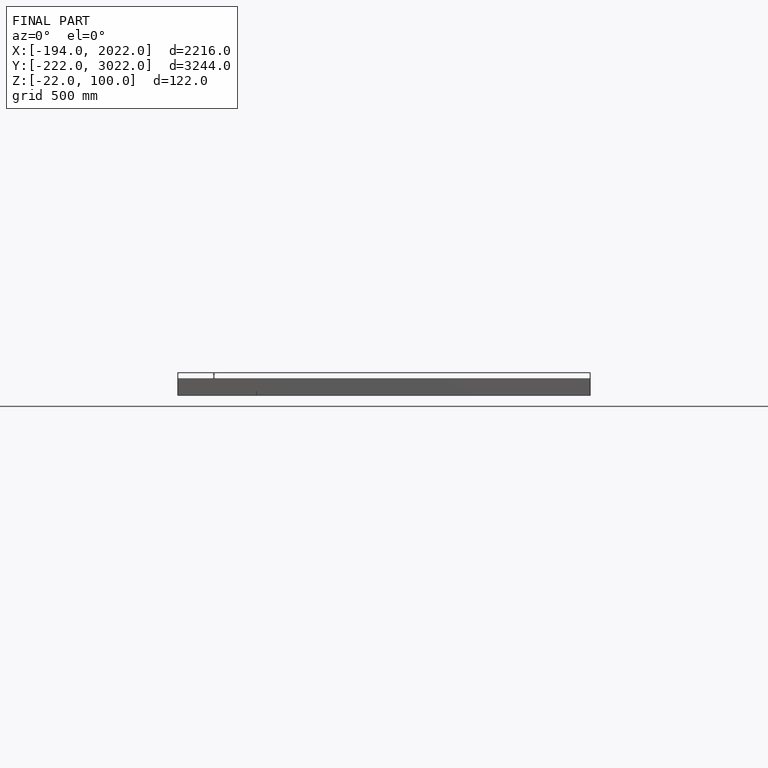
[diagram: finished part — front view with bounding-box wireframe]
